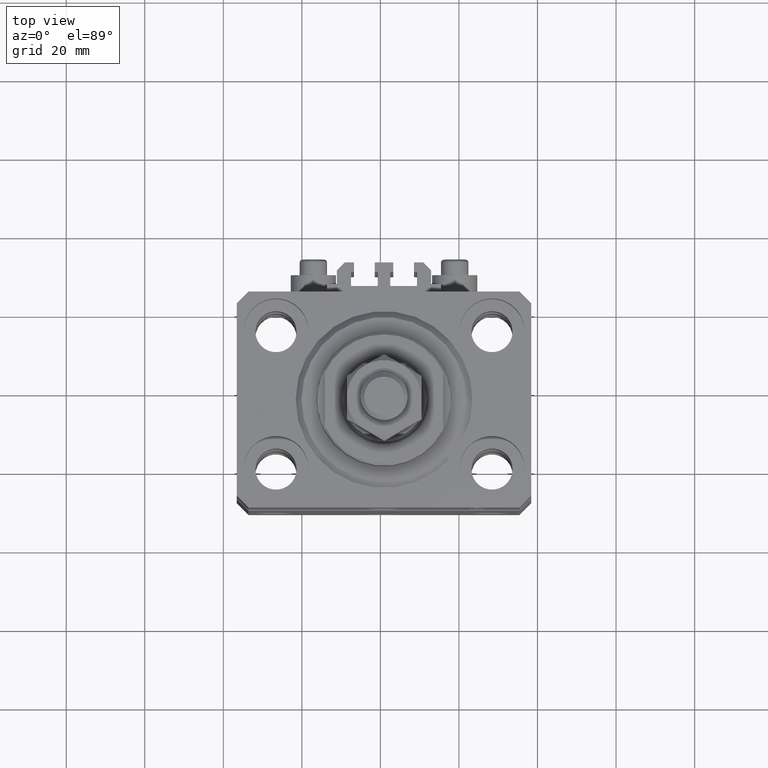
[diagram: clean part render]
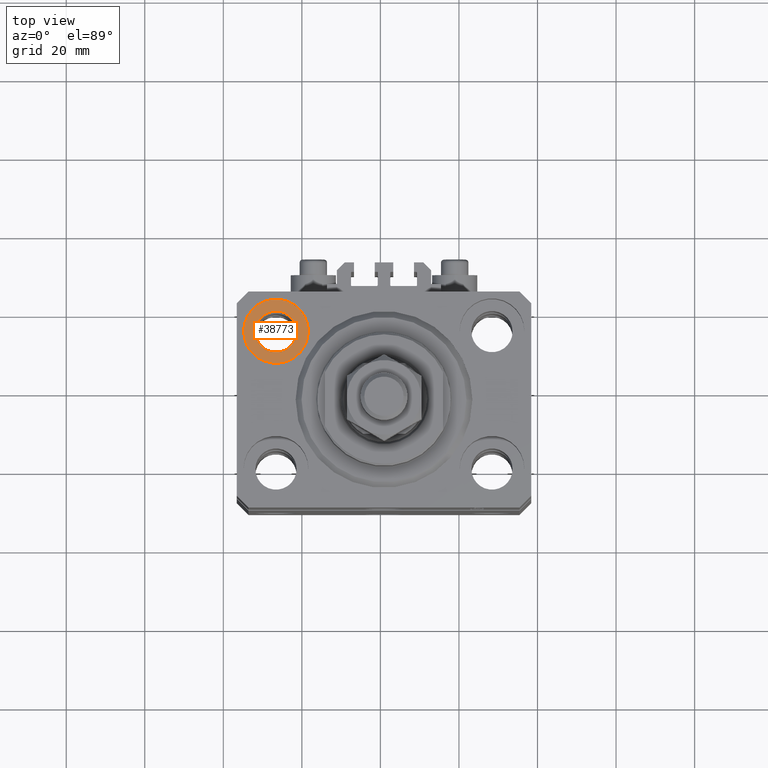
[diagram: same view with one face highlighted and labeled with its STEP entity id]
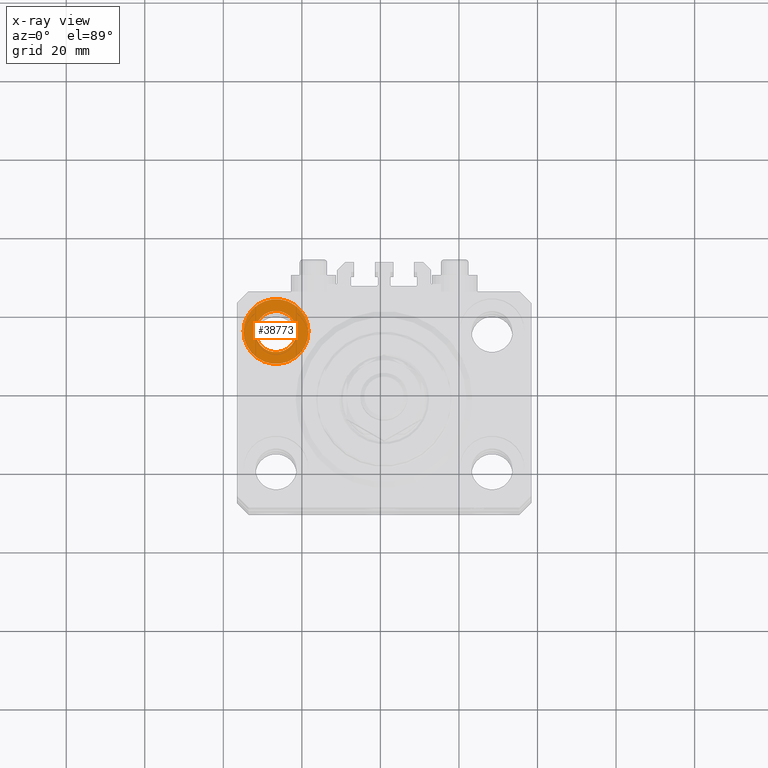
[diagram: x-ray of the same camera — body ghosted, the highlighted face saturated]
A machine part, top view. The second image highlights one B-rep face of the part: STEP entity #38773.
The next image is the same camera in x-ray: the body ghosted, the highlighted face saturated — about 0% of this face is hidden behind the body in this view.
In plain terms, the highlighted planar face has unit normal (0, 0, 1).
Its self-contained STEP definition (entity closure, byte-faithful):
#1488 = AXIS2_PLACEMENT_3D ( 'NONE', #31903, #35106, #46980 ) ;
#5688 = CIRCLE ( 'NONE', #44380, 8.250000000000000000 ) ;
#7570 = CARTESIAN_POINT ( 'NONE',  ( -19.25000000000000355, 17.50000000000000000, -11.00000000000000000 ) ) ;
#7647 = CARTESIAN_POINT ( 'NONE',  ( -22.25000000000000355, 17.50000000000000000, -11.00000000000000000 ) ) ;
#8600 = VERTEX_POINT ( 'NONE', #7647 ) ;
#9057 = DIRECTION ( 'NONE',  ( 0.000000000000000000, 0.000000000000000000, 1.000000000000000000 ) ) ;
#9747 = CIRCLE ( 'NONE', #48431, 5.250000000000000888 ) ;
#10500 = EDGE_LOOP ( 'NONE', ( #42220, #26764 ) ) ;
#11114 = CARTESIAN_POINT ( 'NONE',  ( -27.50000000000000355, 17.50000000000000000, -11.00000000000000000 ) ) ;
#13498 = VERTEX_POINT ( 'NONE', #22284 ) ;
#16072 = FACE_OUTER_BOUND ( 'NONE', #10500, .T. ) ;
#16818 = PLANE ( 'NONE',  #1488 ) ;
#18807 = DIRECTION ( 'NONE',  ( 0.000000000000000000, 0.000000000000000000, 1.000000000000000000 ) ) ;
#20281 = FACE_BOUND ( 'NONE', #20804, .T. ) ;
#20804 = EDGE_LOOP ( 'NONE', ( #31590, #21950 ) ) ;
#20950 = CARTESIAN_POINT ( 'NONE',  ( -27.50000000000000355, 17.50000000000000000, -11.00000000000000000 ) ) ;
#21521 = CIRCLE ( 'NONE', #28658, 5.250000000000000888 ) ;
#21950 = ORIENTED_EDGE ( 'NONE', *, *, #28610, .F. ) ;
#22271 = DIRECTION ( 'NONE',  ( 0.000000000000000000, 0.000000000000000000, 1.000000000000000000 ) ) ;
#22284 = CARTESIAN_POINT ( 'NONE',  ( -35.75000000000000711, 17.50000000000000000, -11.00000000000000000 ) ) ;
#22525 = DIRECTION ( 'NONE',  ( 1.000000000000000000, 0.000000000000000000, 0.000000000000000000 ) ) ;
#25446 = VERTEX_POINT ( 'NONE', #37199 ) ;
#25497 = EDGE_CURVE ( 'NONE', #13498, #40588, #5688, .T. ) ;
#26764 = ORIENTED_EDGE ( 'NONE', *, *, #25497, .T. ) ;
#27637 = DIRECTION ( 'NONE',  ( 1.000000000000000000, 0.000000000000000000, 0.000000000000000000 ) ) ;
#28610 = EDGE_CURVE ( 'NONE', #25446, #8600, #9747, .T. ) ;
#28658 = AXIS2_PLACEMENT_3D ( 'NONE', #20950, #9057, #27637 ) ;
#30525 = CARTESIAN_POINT ( 'NONE',  ( -27.50000000000000355, 17.50000000000000000, -11.00000000000000000 ) ) ;
#30654 = DIRECTION ( 'NONE',  ( 1.000000000000000000, 0.000000000000000000, 0.000000000000000000 ) ) ;
#31590 = ORIENTED_EDGE ( 'NONE', *, *, #48818, .F. ) ;
#31903 = CARTESIAN_POINT ( 'NONE',  ( -27.50000000000000355, 17.50000000000000000, -11.00000000000000000 ) ) ;
#33728 = DIRECTION ( 'NONE',  ( 0.000000000000000000, 0.000000000000000000, 1.000000000000000000 ) ) ;
#35106 = DIRECTION ( 'NONE',  ( 0.000000000000000000, 0.000000000000000000, 1.000000000000000000 ) ) ;
#37199 = CARTESIAN_POINT ( 'NONE',  ( -32.75000000000000000, 17.50000000000000000, -11.00000000000000000 ) ) ;
#38773 = ADVANCED_FACE ( 'NONE', ( #20281, #16072 ), #16818, .T. ) ;
#40588 = VERTEX_POINT ( 'NONE', #7570 ) ;
#42220 = ORIENTED_EDGE ( 'NONE', *, *, #42861, .T. ) ;
#42861 = EDGE_CURVE ( 'NONE', #40588, #13498, #45776, .T. ) ;
#44380 = AXIS2_PLACEMENT_3D ( 'NONE', #30525, #33728, #45598 ) ;
#44964 = AXIS2_PLACEMENT_3D ( 'NONE', #11114, #22271, #30654 ) ;
#45499 = CARTESIAN_POINT ( 'NONE',  ( -27.50000000000000355, 17.50000000000000000, -11.00000000000000000 ) ) ;
#45598 = DIRECTION ( 'NONE',  ( 1.000000000000000000, 0.000000000000000000, 0.000000000000000000 ) ) ;
#45776 = CIRCLE ( 'NONE', #44964, 8.250000000000000000 ) ;
#46980 = DIRECTION ( 'NONE',  ( 1.000000000000000000, 0.000000000000000000, -0.000000000000000000 ) ) ;
#48431 = AXIS2_PLACEMENT_3D ( 'NONE', #45499, #18807, #22525 ) ;
#48818 = EDGE_CURVE ( 'NONE', #8600, #25446, #21521, .T. ) ;